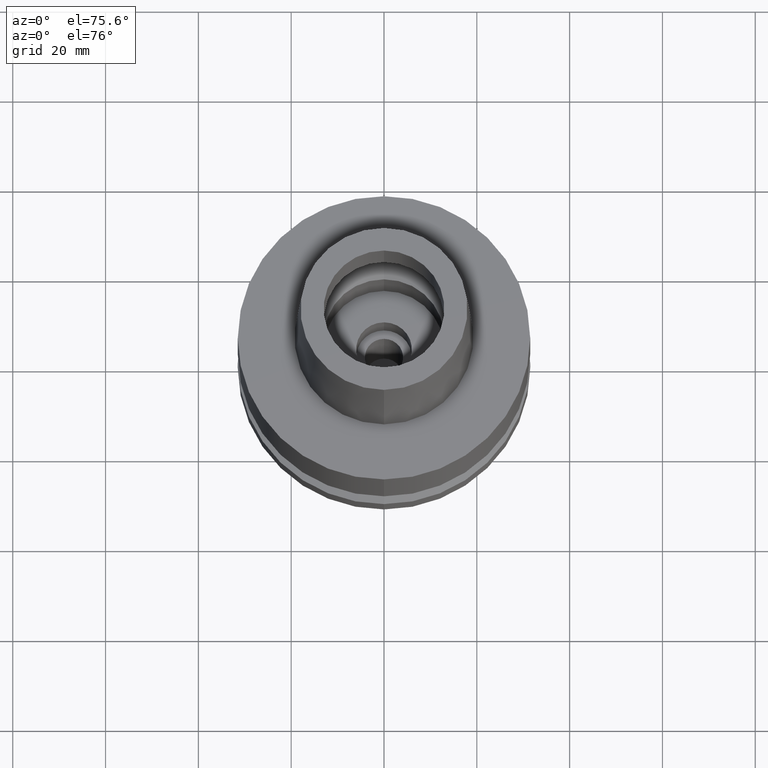
[diagram: clean part render]
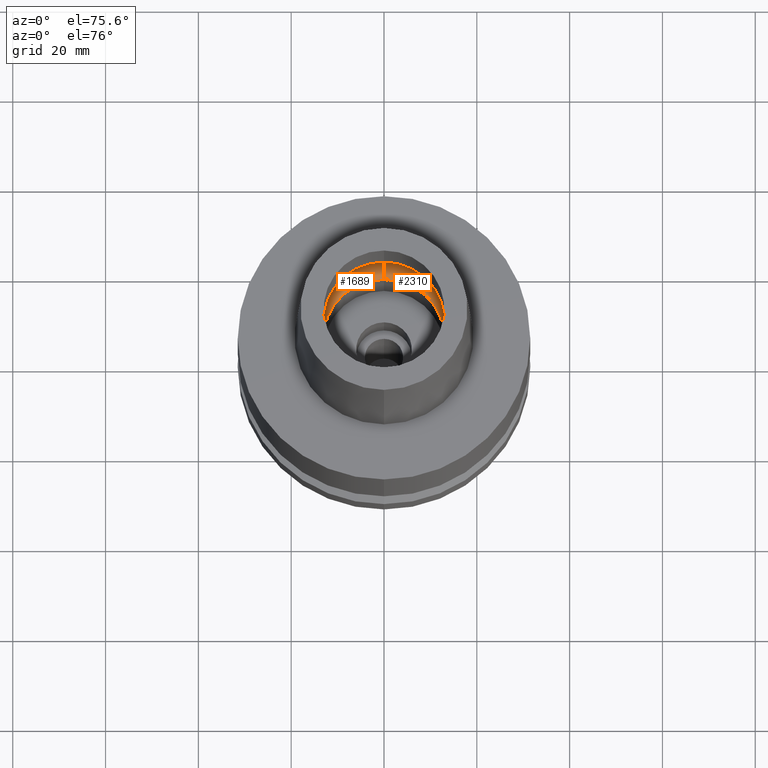
[diagram: same view with one multi-face feature highlighted, each face labeled with its STEP entity id]
A machine part, auxiliary view. The highlighted faces form ONE feature: a constant-radius fillet chain: 2 tangent blend faces with common blend radius 6 mm. The faces share edges in the B-rep.
Their STEP definitions:
[1] entity #1689 (Torus):
#34 = ORIENTED_EDGE ( 'NONE', *, *, #629, .F. ) ;
#46 = DIRECTION ( 'NONE',  ( 0.0000000000000000000, -0.5000000000000169864, -0.8660254037844289376 ) ) ;
#98 = ORIENTED_EDGE ( 'NONE', *, *, #621, .F. ) ;
#238 = CARTESIAN_POINT ( 'NONE',  ( 0.0000000000000000000, -10.00000000000000000, 5.245999999999999552 ) ) ;
#297 = DIRECTION ( 'NONE',  ( 0.0000000000000000000, 0.0000000000000000000, 1.000000000000000000 ) ) ;
#323 = EDGE_CURVE ( 'NONE', #2344, #511, #610, .T. ) ;
#324 = DIRECTION ( 'NONE',  ( 0.0000000000000000000, 0.5000000000000169864, -0.8660254037844289376 ) ) ;
#339 = ORIENTED_EDGE ( 'NONE', *, *, #323, .F. ) ;
#412 = DIRECTION ( 'NONE',  ( 0.0000000000000000000, -1.000000000000000000, 0.0000000000000000000 ) ) ;
#429 = CARTESIAN_POINT ( 'NONE',  ( 0.0000000000000000000, 16.00000000000000000, 5.245999999999999552 ) ) ;
#511 = VERTEX_POINT ( 'NONE', #429 ) ;
#554 = FACE_OUTER_BOUND ( 'NONE', #1135, .T. ) ;
#557 = VERTEX_POINT ( 'NONE', #1557 ) ;
#610 = CIRCLE ( 'NONE', #2201, 16.00000000000000000 ) ;
#621 = EDGE_CURVE ( 'NONE', #2553, #557, #2661, .T. ) ;
#629 = EDGE_CURVE ( 'NONE', #557, #2344, #1709, .T. ) ;
#635 = CARTESIAN_POINT ( 'NONE',  ( 0.0000000000000000000, 13.00000000000000000, 0.04984757729328000153 ) ) ;
#669 = AXIS2_PLACEMENT_3D ( 'NONE', #2694, #2479, #324 ) ;
#676 = DIRECTION ( 'NONE',  ( -1.000000000000000000, 0.0000000000000000000, 0.0000000000000000000 ) ) ;
#756 = DIRECTION ( 'NONE',  ( 0.0000000000000000000, 1.000000000000000000, 0.0000000000000000000 ) ) ;
#833 = EDGE_CURVE ( 'NONE', #2553, #511, #1883, .T. ) ;
#881 = CARTESIAN_POINT ( 'NONE',  ( 0.0000000000000000000, 0.0000000000000000000, 0.04984757729334999415 ) ) ;
#1064 = ORIENTED_EDGE ( 'NONE', *, *, #833, .T. ) ;
#1135 = EDGE_LOOP ( 'NONE', ( #339, #34, #98, #1064 ) ) ;
#1307 = AXIS2_PLACEMENT_3D ( 'NONE', #2045, #297, #756 ) ;
#1323 = CARTESIAN_POINT ( 'NONE',  ( 0.0000000000000000000, 0.0000000000000000000, 5.245999999999999552 ) ) ;
#1489 = DIRECTION ( 'NONE',  ( 0.0000000000000000000, 0.0000000000000000000, -1.000000000000000000 ) ) ;
#1557 = CARTESIAN_POINT ( 'NONE',  ( 0.0000000000000000000, -13.00000000000000000, 0.04984757729334999415 ) ) ;
#1689 = ADVANCED_FACE ( 'NONE', ( #554 ), #2521, .F. ) ;
#1709 = CIRCLE ( 'NONE', #2701, 6.000000000000000000 ) ;
#1751 = DIRECTION ( 'NONE',  ( 0.0000000000000000000, 1.000000000000000000, 0.0000000000000000000 ) ) ;
#1883 = CIRCLE ( 'NONE', #669, 6.000000000000000000 ) ;
#1917 = CARTESIAN_POINT ( 'NONE',  ( 0.0000000000000000000, -16.00000000000000000, 5.245999999999999552 ) ) ;
#2045 = CARTESIAN_POINT ( 'NONE',  ( 0.0000000000000000000, 0.0000000000000000000, 5.245999999999999552 ) ) ;
#2108 = AXIS2_PLACEMENT_3D ( 'NONE', #881, #2181, #1751 ) ;
#2181 = DIRECTION ( 'NONE',  ( 0.0000000000000000000, 0.0000000000000000000, 1.000000000000000000 ) ) ;
#2201 = AXIS2_PLACEMENT_3D ( 'NONE', #1323, #1489, #412 ) ;
#2344 = VERTEX_POINT ( 'NONE', #1917 ) ;
#2479 = DIRECTION ( 'NONE',  ( 1.000000000000000000, 0.0000000000000000000, 0.0000000000000000000 ) ) ;
#2521 = TOROIDAL_SURFACE ( 'NONE', #1307, 10.00000000000000000, 6.000000000000000000 ) ;
#2553 = VERTEX_POINT ( 'NONE', #635 ) ;
#2661 = CIRCLE ( 'NONE', #2108, 13.00000000000000000 ) ;
#2694 = CARTESIAN_POINT ( 'NONE',  ( 0.0000000000000000000, 10.00000000000000000, 5.245999999999999552 ) ) ;
#2701 = AXIS2_PLACEMENT_3D ( 'NONE', #238, #676, #46 ) ;
[2] entity #2310 (Torus):
#46 = DIRECTION ( 'NONE',  ( 0.0000000000000000000, -0.5000000000000169864, -0.8660254037844289376 ) ) ;
#86 = CIRCLE ( 'NONE', #1351, 13.00000000000000000 ) ;
#125 = DIRECTION ( 'NONE',  ( 0.0000000000000000000, 1.000000000000000000, 0.0000000000000000000 ) ) ;
#238 = CARTESIAN_POINT ( 'NONE',  ( 0.0000000000000000000, -10.00000000000000000, 5.245999999999999552 ) ) ;
#324 = DIRECTION ( 'NONE',  ( 0.0000000000000000000, 0.5000000000000169864, -0.8660254037844289376 ) ) ;
#429 = CARTESIAN_POINT ( 'NONE',  ( 0.0000000000000000000, 16.00000000000000000, 5.245999999999999552 ) ) ;
#511 = VERTEX_POINT ( 'NONE', #429 ) ;
#557 = VERTEX_POINT ( 'NONE', #1557 ) ;
#608 = DIRECTION ( 'NONE',  ( 0.0000000000000000000, -1.000000000000000000, 0.0000000000000000000 ) ) ;
#629 = EDGE_CURVE ( 'NONE', #557, #2344, #1709, .T. ) ;
#635 = CARTESIAN_POINT ( 'NONE',  ( 0.0000000000000000000, 13.00000000000000000, 0.04984757729328000153 ) ) ;
#669 = AXIS2_PLACEMENT_3D ( 'NONE', #2694, #2479, #324 ) ;
#676 = DIRECTION ( 'NONE',  ( -1.000000000000000000, 0.0000000000000000000, 0.0000000000000000000 ) ) ;
#815 = AXIS2_PLACEMENT_3D ( 'NONE', #2057, #1599, #125 ) ;
#833 = EDGE_CURVE ( 'NONE', #2553, #511, #1883, .T. ) ;
#1121 = DIRECTION ( 'NONE',  ( 0.0000000000000000000, 1.000000000000000000, 0.0000000000000000000 ) ) ;
#1179 = ORIENTED_EDGE ( 'NONE', *, *, #833, .F. ) ;
#1264 = CIRCLE ( 'NONE', #2763, 16.00000000000000000 ) ;
#1289 = ORIENTED_EDGE ( 'NONE', *, *, #2720, .F. ) ;
#1351 = AXIS2_PLACEMENT_3D ( 'NONE', #1572, #1368, #608 ) ;
#1368 = DIRECTION ( 'NONE',  ( 0.0000000000000000000, 0.0000000000000000000, 1.000000000000000000 ) ) ;
#1482 = ORIENTED_EDGE ( 'NONE', *, *, #629, .T. ) ;
#1557 = CARTESIAN_POINT ( 'NONE',  ( 0.0000000000000000000, -13.00000000000000000, 0.04984757729334999415 ) ) ;
#1572 = CARTESIAN_POINT ( 'NONE',  ( 0.0000000000000000000, 0.0000000000000000000, 0.04984757729334999415 ) ) ;
#1599 = DIRECTION ( 'NONE',  ( 0.0000000000000000000, 0.0000000000000000000, 1.000000000000000000 ) ) ;
#1696 = EDGE_CURVE ( 'NONE', #557, #2553, #86, .T. ) ;
#1709 = CIRCLE ( 'NONE', #2701, 6.000000000000000000 ) ;
#1842 = EDGE_LOOP ( 'NONE', ( #2280, #1482, #1289, #1179 ) ) ;
#1883 = CIRCLE ( 'NONE', #669, 6.000000000000000000 ) ;
#1917 = CARTESIAN_POINT ( 'NONE',  ( 0.0000000000000000000, -16.00000000000000000, 5.245999999999999552 ) ) ;
#2028 = TOROIDAL_SURFACE ( 'NONE', #815, 10.00000000000000000, 6.000000000000000000 ) ;
#2057 = CARTESIAN_POINT ( 'NONE',  ( 0.0000000000000000000, 0.0000000000000000000, 5.245999999999999552 ) ) ;
#2280 = ORIENTED_EDGE ( 'NONE', *, *, #1696, .F. ) ;
#2310 = ADVANCED_FACE ( 'NONE', ( #2687 ), #2028, .F. ) ;
#2344 = VERTEX_POINT ( 'NONE', #1917 ) ;
#2387 = DIRECTION ( 'NONE',  ( 0.0000000000000000000, 0.0000000000000000000, -1.000000000000000000 ) ) ;
#2479 = DIRECTION ( 'NONE',  ( 1.000000000000000000, 0.0000000000000000000, 0.0000000000000000000 ) ) ;
#2553 = VERTEX_POINT ( 'NONE', #635 ) ;
#2612 = CARTESIAN_POINT ( 'NONE',  ( 0.0000000000000000000, 0.0000000000000000000, 5.245999999999999552 ) ) ;
#2687 = FACE_OUTER_BOUND ( 'NONE', #1842, .T. ) ;
#2694 = CARTESIAN_POINT ( 'NONE',  ( 0.0000000000000000000, 10.00000000000000000, 5.245999999999999552 ) ) ;
#2701 = AXIS2_PLACEMENT_3D ( 'NONE', #238, #676, #46 ) ;
#2720 = EDGE_CURVE ( 'NONE', #511, #2344, #1264, .T. ) ;
#2763 = AXIS2_PLACEMENT_3D ( 'NONE', #2612, #2387, #1121 ) ;